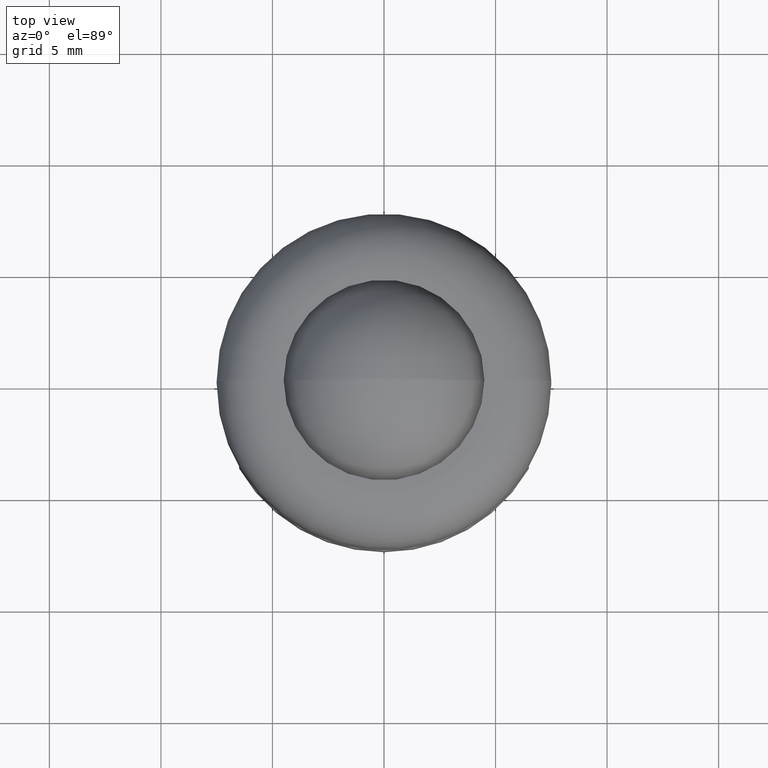
[diagram: clean part render]
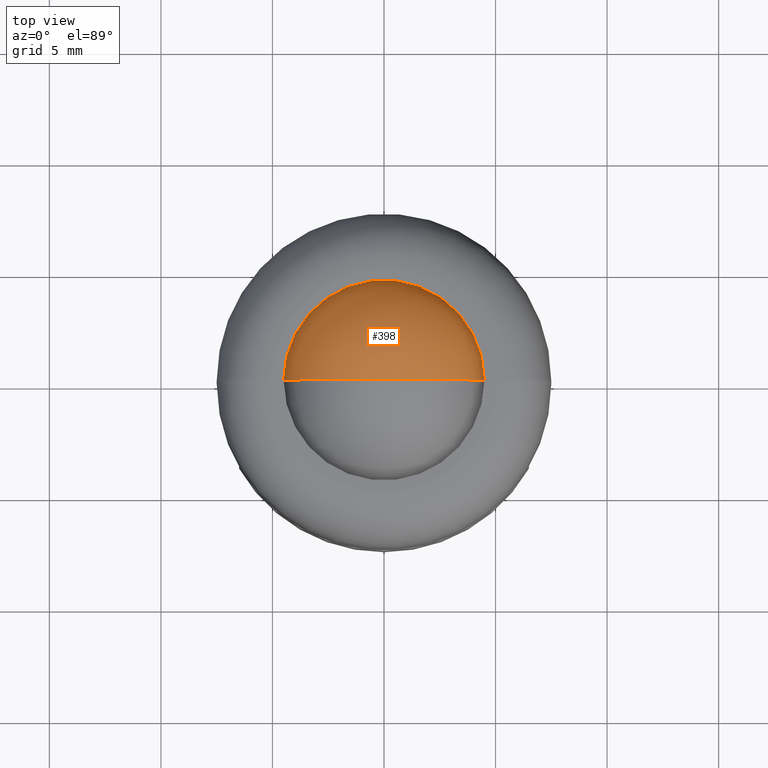
[diagram: same view with one face highlighted and labeled with its STEP entity id]
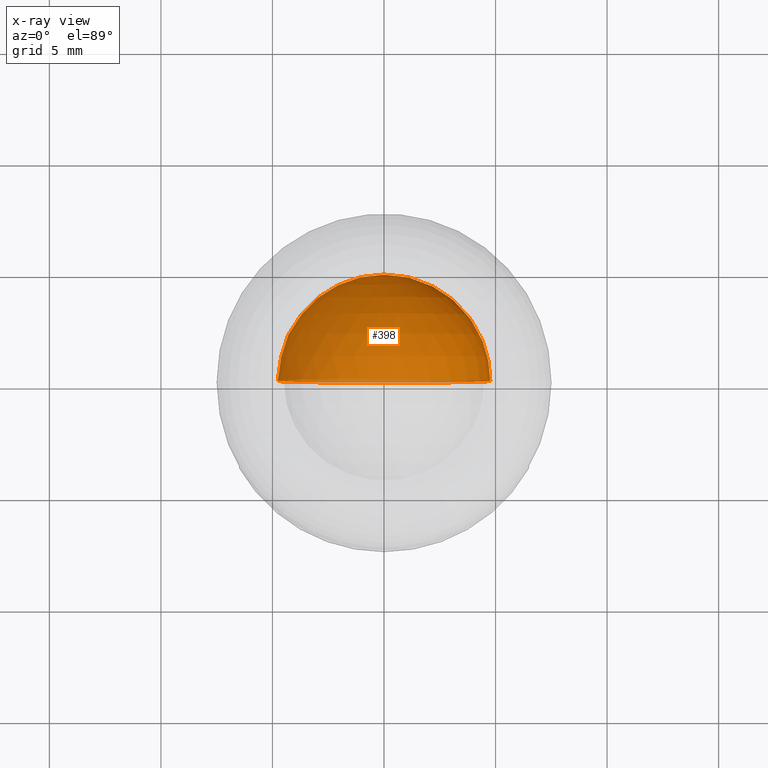
[diagram: x-ray of the same camera — body ghosted, the highlighted face saturated]
A machine part, top view. The second image highlights one B-rep face of the part: STEP entity #398.
The next image is the same camera in x-ray: the body ghosted, the highlighted face saturated — about 3% of this face is hidden behind the body in this view.
In plain terms, the highlighted spherical surface has radius 4.7625 mm.
Its self-contained STEP definition (entity closure, byte-faithful):
#29 = CARTESIAN_POINT ( 'NONE',  ( 2.916190190469635100E-016, 0.0000000000000000000, 11.50000000000000000 ) ) ;
#39 = AXIS2_PLACEMENT_3D ( 'NONE', #586, #370, #654 ) ;
#71 = EDGE_CURVE ( 'NONE', #609, #414, #94, .T. ) ;
#94 = CIRCLE ( 'NONE', #39, 4.762499999999999300 ) ;
#219 = CARTESIAN_POINT ( 'NONE',  ( 2.916190190469635100E-016, 0.0000000000000000000, 1.975000000000000100 ) ) ;
#220 = AXIS2_PLACEMENT_3D ( 'NONE', #912, #828, #557 ) ;
#261 = ORIENTED_EDGE ( 'NONE', *, *, #71, .T. ) ;
#298 = DIRECTION ( 'NONE',  ( 0.0000000000000000000, -1.000000000000000000, 0.0000000000000000000 ) ) ;
#341 = SPHERICAL_SURFACE ( 'NONE', #489, 4.762500000000000200 ) ;
#370 = DIRECTION ( 'NONE',  ( -0.0000000000000000000, 1.000000000000000000, 0.0000000000000000000 ) ) ;
#373 = CARTESIAN_POINT ( 'NONE',  ( 0.0000000000000000000, 0.0000000000000000000, 6.737500000000000700 ) ) ;
#398 = ADVANCED_FACE ( 'NONE', ( #713 ), #341, .T. ) ;
#414 = VERTEX_POINT ( 'NONE', #219 ) ;
#427 = DIRECTION ( 'NONE',  ( 1.000000000000000000, 0.0000000000000000000, 0.0000000000000000000 ) ) ;
#435 = ORIENTED_EDGE ( 'NONE', *, *, #871, .F. ) ;
#489 = AXIS2_PLACEMENT_3D ( 'NONE', #373, #298, #427 ) ;
#557 = DIRECTION ( 'NONE',  ( 1.000000000000000000, 1.224646799147353200E-016, 0.0000000000000000000 ) ) ;
#586 = CARTESIAN_POINT ( 'NONE',  ( 0.0000000000000000000, 0.0000000000000000000, 6.737500000000000700 ) ) ;
#609 = VERTEX_POINT ( 'NONE', #29 ) ;
#654 = DIRECTION ( 'NONE',  ( 0.0000000000000000000, 0.0000000000000000000, 1.000000000000000000 ) ) ;
#713 = FACE_OUTER_BOUND ( 'NONE', #899, .T. ) ;
#748 = CIRCLE ( 'NONE', #220, 4.762500000000000200 ) ;
#828 = DIRECTION ( 'NONE',  ( 1.224646799147353200E-016, -1.000000000000000000, 0.0000000000000000000 ) ) ;
#871 = EDGE_CURVE ( 'NONE', #609, #414, #748, .T. ) ;
#899 = EDGE_LOOP ( 'NONE', ( #435, #261 ) ) ;
#912 = CARTESIAN_POINT ( 'NONE',  ( 0.0000000000000000000, 0.0000000000000000000, 6.737500000000000700 ) ) ;